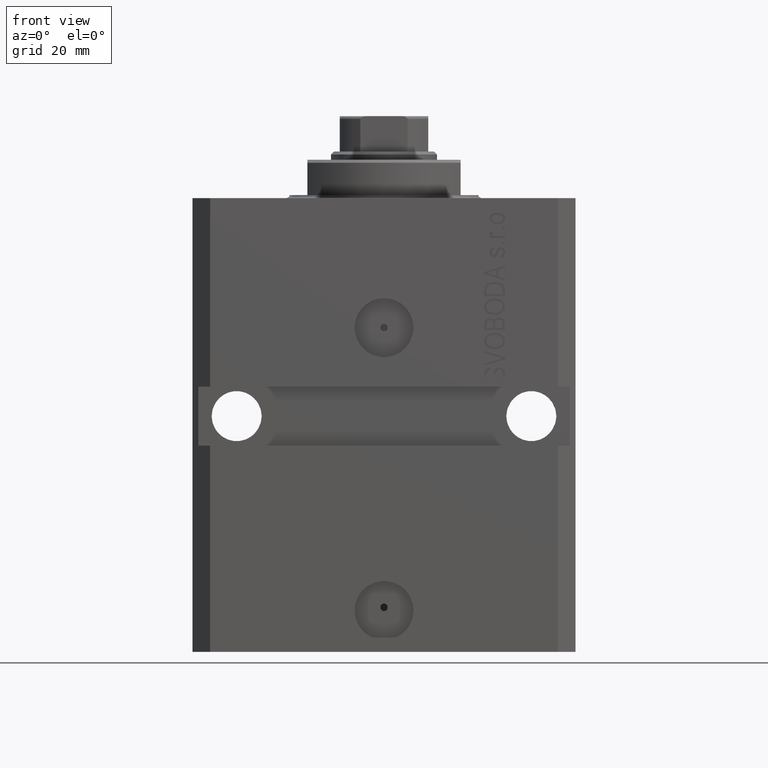
[diagram: clean part render]
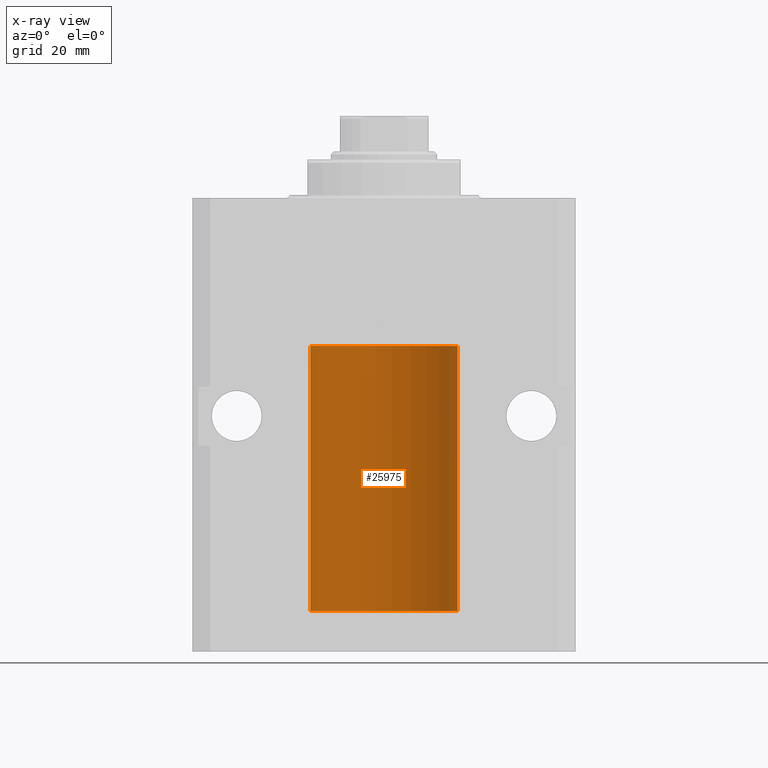
[diagram: x-ray — body ghosted, one internal face saturated and labeled with its STEP entity id]
A machine part, front view, then the same camera in x-ray: the body is ghosted and one INTERNAL B-rep face — a face not visible from any outside direction — is saturated and labeled: STEP entity #25975.
In plain terms, the highlighted cylindrical surface (partial cylindrical patch) has radius 12.5 mm, axis along (0, 0, 1).
Its self-contained STEP definition (entity closure, byte-faithful):
#706 = VERTEX_POINT ( 'NONE', #18891 ) ;
#1136 = AXIS2_PLACEMENT_3D ( 'NONE', #27931, #13871, #38676 ) ;
#1346 = EDGE_CURVE ( 'NONE', #33353, #26868, #43239, .T. ) ;
#3146 = EDGE_CURVE ( 'NONE', #20452, #34172, #46629, .T. ) ;
#3533 = ORIENTED_EDGE ( 'NONE', *, *, #3146, .F. ) ;
#3900 = AXIS2_PLACEMENT_3D ( 'NONE', #19359, #11501, #30303 ) ;
#4435 = ORIENTED_EDGE ( 'NONE', *, *, #8948, .T. ) ;
#5882 = CARTESIAN_POINT ( 'NONE',  ( -12.49011732893843707, 0.5003763274120244242, -65.38348111289288056 ) ) ;
#7876 = CARTESIAN_POINT ( 'NONE',  ( -12.50000000000000000, 1.530808498934191127E-15, -25.10000000000000142 ) ) ;
#8685 = DIRECTION ( 'NONE',  ( 1.000000000000000000, 0.000000000000000000, 0.000000000000000000 ) ) ;
#8948 = EDGE_CURVE ( 'NONE', #33353, #34172, #35620, .T. ) ;
#9058 = CARTESIAN_POINT ( 'NONE',  ( -12.50000000000000000, -1.050566418211748297E-14, -64.37500000000000000 ) ) ;
#9466 = CARTESIAN_POINT ( 'NONE',  ( -12.49915784441386890, 0.1636601911727942615, -64.39126818989430490 ) ) ;
#9702 = CARTESIAN_POINT ( 'NONE',  ( -12.49625855304193855, 0.3150454781038045660, -64.45402800297485157 ) ) ;
#11051 = CIRCLE ( 'NONE', #1136, 12.50000000000000000 ) ;
#11501 = DIRECTION ( 'NONE',  ( -0.000000000000000000, -0.000000000000000000, 1.000000000000000000 ) ) ;
#13871 = DIRECTION ( 'NONE',  ( 0.000000000000000000, 0.000000000000000000, 1.000000000000000000 ) ) ;
#14485 = DIRECTION ( 'NONE',  ( -0.000000000000000000, -0.000000000000000000, 1.000000000000000000 ) ) ;
#14625 = DIRECTION ( 'NONE',  ( -0.000000000000000000, -0.000000000000000000, 1.000000000000000000 ) ) ;
#15315 = CYLINDRICAL_SURFACE ( 'NONE', #3900, 12.50000000000000000 ) ;
#15375 = DIRECTION ( 'NONE',  ( 0.000000000000000000, 0.000000000000000000, 1.000000000000000000 ) ) ;
#16216 = VECTOR ( 'NONE', #36124, 1000.000000000000000 ) ;
#18891 = CARTESIAN_POINT ( 'NONE',  ( 12.50000000000000000, 0.000000000000000000, -25.10000000000000142 ) ) ;
#19359 = CARTESIAN_POINT ( 'NONE',  ( 0.000000000000000000, 0.000000000000000000, -70.09999999999999432 ) ) ;
#20452 = VERTEX_POINT ( 'NONE', #26737 ) ;
#21149 = LINE ( 'NONE', #28310, #25292 ) ;
#23060 = ORIENTED_EDGE ( 'NONE', *, *, #31434, .F. ) ;
#23746 = CARTESIAN_POINT ( 'NONE',  ( -12.48436813453758454, 0.6249418250771179295, -64.83668996798921569 ) ) ;
#23985 = CARTESIAN_POINT ( 'NONE',  ( -12.50000000000017941, 3.883381774819353300E-13, -65.62500000000359535 ) ) ;
#24468 = CARTESIAN_POINT ( 'NONE',  ( -12.49999999999999289, 0.1631761135151231223, -65.62499999999984368 ) ) ;
#24709 = CARTESIAN_POINT ( 'NONE',  ( -12.49631005746706158, 0.3253680783018496059, -65.55856740465392818 ) ) ;
#25292 = VECTOR ( 'NONE', #14485, 1000.000000000000000 ) ;
#25975 = ADVANCED_FACE ( 'NONE', ( #40835 ), #15315, .F. ) ;
#26737 = CARTESIAN_POINT ( 'NONE',  ( -12.50000000000000000, 1.530808498934191127E-15, -70.09999999999999432 ) ) ;
#26868 = VERTEX_POINT ( 'NONE', #7876 ) ;
#27019 = ORIENTED_EDGE ( 'NONE', *, *, #1346, .F. ) ;
#27577 = CARTESIAN_POINT ( 'NONE',  ( -12.48809959379011580, 0.5462151254764967545, -65.31461370481615347 ) ) ;
#27931 = CARTESIAN_POINT ( 'NONE',  ( 0.000000000000000000, 0.000000000000000000, -25.10000000000000142 ) ) ;
#28293 = CARTESIAN_POINT ( 'NONE',  ( -12.49422197749724539, 0.3843754434364305972, -64.50047099568097053 ) ) ;
#28310 = CARTESIAN_POINT ( 'NONE',  ( 12.50000000000000000, 0.000000000000000000, -70.09999999999999432 ) ) ;
#28412 = EDGE_CURVE ( 'NONE', #46218, #706, #21149, .T. ) ;
#30303 = DIRECTION ( 'NONE',  ( 1.000000000000000000, 0.000000000000000000, 0.000000000000000000 ) ) ;
#31142 = CARTESIAN_POINT ( 'NONE',  ( -12.49999999999999645, 0.08260426088728482774, -64.37499999999998579 ) ) ;
#31434 = EDGE_CURVE ( 'NONE', #46218, #20452, #45208, .T. ) ;
#31974 = ORIENTED_EDGE ( 'NONE', *, *, #28412, .T. ) ;
#32109 = ORIENTED_EDGE ( 'NONE', *, *, #38087, .T. ) ;
#32499 = CARTESIAN_POINT ( 'NONE',  ( -12.50000000000000000, 1.530808498934191127E-15, -70.09999999999999432 ) ) ;
#33353 = VERTEX_POINT ( 'NONE', #9058 ) ;
#34172 = VERTEX_POINT ( 'NONE', #42918 ) ;
#34492 = CARTESIAN_POINT ( 'NONE',  ( -12.48520330846398174, 0.6088355886774118320, -65.16325431852561678 ) ) ;
#35020 = EDGE_LOOP ( 'NONE', ( #3533, #23060, #31974, #32109, #27019, #4435 ) ) ;
#35620 = B_SPLINE_CURVE_WITH_KNOTS ( 'NONE', 3,
 ( #42845, #31142, #9466, #9702, #28293, #39284, #23746, #41890, #34492, #27577, #5882, #24709, #24468, #23985 ),
 .UNSPECIFIED., .F., .F.,
 ( 4, 2, 2, 2, 2, 2, 4 ),
 ( 3.452213508042194616E-18, 0.0002442924852390797774, 0.0004885849704781561938, 0.0009771699409563384085, 0.001221462426195450224, 0.001465754911434562040, 0.001954339881912785671 ),
 .UNSPECIFIED. ) ;
#36012 = VECTOR ( 'NONE', #14625, 1000.000000000000000 ) ;
#36124 = DIRECTION ( 'NONE',  ( -0.000000000000000000, -0.000000000000000000, 1.000000000000000000 ) ) ;
#37914 = CARTESIAN_POINT ( 'NONE',  ( 12.50000000000000000, 0.000000000000000000, -70.09999999999999432 ) ) ;
#38087 = EDGE_CURVE ( 'NONE', #706, #26868, #11051, .T. ) ;
#38676 = DIRECTION ( 'NONE',  ( 1.000000000000000000, 0.000000000000000000, 0.000000000000000000 ) ) ;
#39284 = CARTESIAN_POINT ( 'NONE',  ( -12.48810268015257741, 0.5573155909661291485, -64.67347410093869087 ) ) ;
#39714 = CARTESIAN_POINT ( 'NONE',  ( -12.50000000000000000, 1.530808498934191127E-15, -70.09999999999999432 ) ) ;
#40661 = CARTESIAN_POINT ( 'NONE',  ( 0.000000000000000000, 0.000000000000000000, -70.09999999999999432 ) ) ;
#40835 = FACE_OUTER_BOUND ( 'NONE', #35020, .T. ) ;
#41890 = CARTESIAN_POINT ( 'NONE',  ( -12.48436376893640087, 0.6250290278979918623, -65.08132082824472775 ) ) ;
#42845 = CARTESIAN_POINT ( 'NONE',  ( -12.50000000000000000, -1.050566418211748297E-14, -64.37500000000000000 ) ) ;
#42918 = CARTESIAN_POINT ( 'NONE',  ( -12.50000000000017941, 3.883381774819353300E-13, -65.62500000000359535 ) ) ;
#43239 = LINE ( 'NONE', #32499, #36012 ) ;
#44433 = AXIS2_PLACEMENT_3D ( 'NONE', #40661, #15375, #8685 ) ;
#45208 = CIRCLE ( 'NONE', #44433, 12.50000000000000000 ) ;
#46218 = VERTEX_POINT ( 'NONE', #37914 ) ;
#46629 = LINE ( 'NONE', #39714, #16216 ) ;